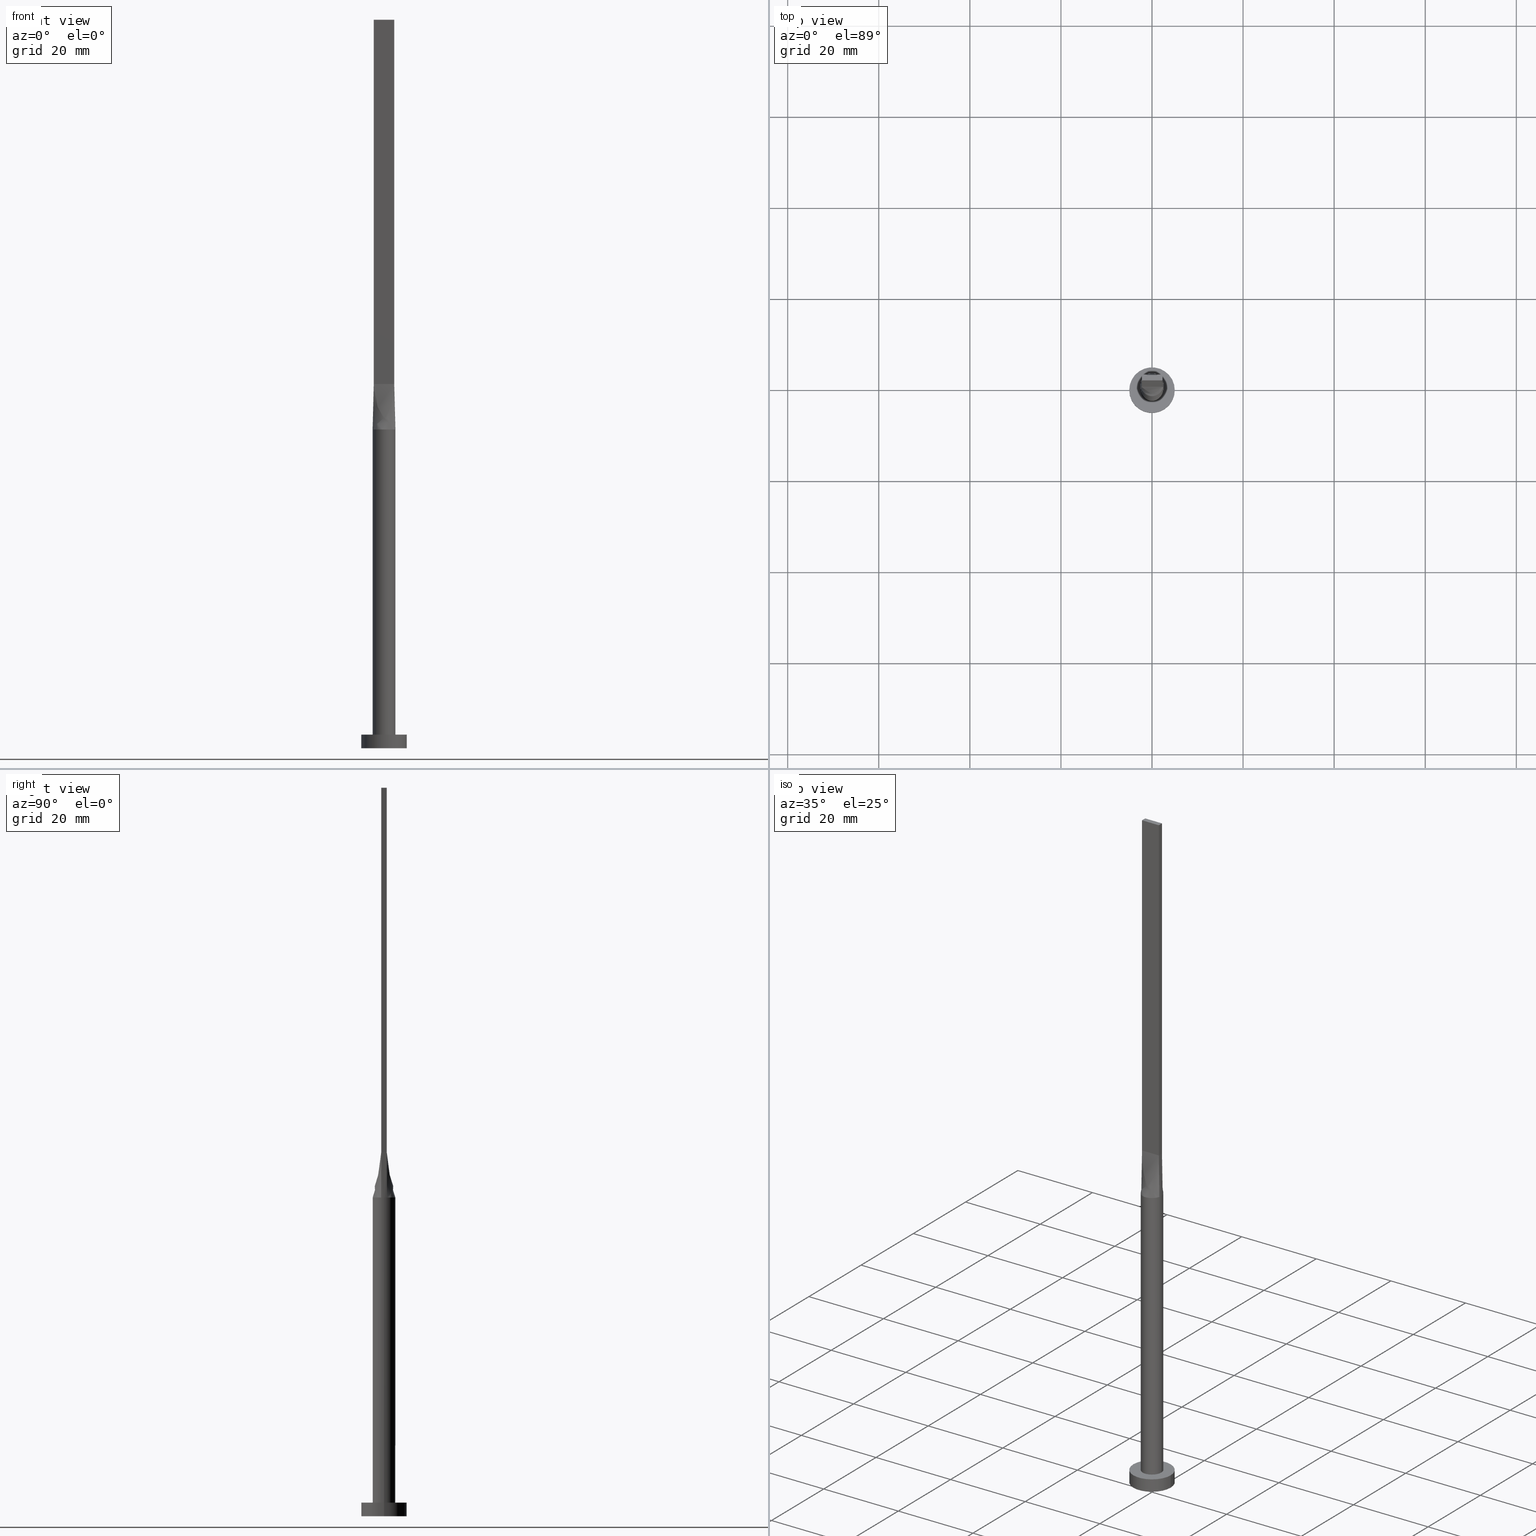
[diagram: canonical four-view strip — front | top / right | iso, engineering-drawing reading convention]
A machine part, canonical four-view strip (front | top / right | iso — engineering-drawing reading convention). The complete STEP part file that produces these views, byte-faithful:
ISO-10303-21;
HEADER;
FILE_DESCRIPTION (( 'STEP AP203' ),
    '1' );
FILE_NAME ('8a02.STEP',
    '2023-02-13T11:21:34',
    ( '' ),
    ( '' ),
    'SwSTEP 2.0',
    'SolidWorks 2019',
    '' );
FILE_SCHEMA (( 'CONFIG_CONTROL_DESIGN' ));
ENDSEC;

DATA;
#1 = ORIENTED_EDGE ( 'NONE', *, *, #532, .T. ) ;
#2 = EDGE_CURVE ( 'NONE', #413, #77, #72, .T. ) ;
#3 = CARTESIAN_POINT ( 'NONE',  ( -0.6394215159088052491, 2.436483607037785326, 70.00000000000000000 ) ) ;
#4 = ORIENTED_EDGE ( 'NONE', *, *, #564, .F. ) ;
#5 = LOCAL_TIME ( 12, 21, 34.00000000000000000, #226 ) ;
#6 = DATE_AND_TIME ( #533, #5 ) ;
#7 = CARTESIAN_POINT ( 'NONE',  ( 1.880930080310023289, 1.670304384679167642, 69.99999999999998579 ) ) ;
#8 = ORIENTED_EDGE ( 'NONE', *, *, #532, .F. ) ;
#9 = LINE ( 'NONE', #49, #316 ) ;
#10 = EDGE_LOOP ( 'NONE', ( #387, #399, #354, #520 ) ) ;
#11 = PRODUCT_RELATED_PRODUCT_CATEGORY ( 'detail', '', ( #45 ) ) ;
#12 = CARTESIAN_POINT ( 'NONE',  ( 2.283437435282019479, -1.045786430836911363, 70.00000000000001421 ) ) ;
#13 = CARTESIAN_POINT ( 'NONE',  ( 0.000000000000000000, 0.000000000000000000, 3.000000000000000000 ) ) ;
#14 = CIRCLE ( 'NONE', #63, 2.500000000000000000 ) ;
#15 = EDGE_CURVE ( 'NONE', #576, #58, #195, .T. ) ;
#16 = PLANE ( 'NONE',  #306 ) ;
#17 = DIRECTION ( 'NONE',  ( 1.000000000000000000, -7.228014483236697048E-17, 0.000000000000000000 ) ) ;
#18 = APPROVAL ( #221, 'NEUR�EN�' ) ;
#19 = LINE ( 'NONE', #169, #238 ) ;
#20 = CARTESIAN_POINT ( 'NONE',  ( 1.874999999999996003, 0.6000000000000001998, 80.00000000000000000 ) ) ;
#21 = CARTESIAN_POINT ( 'NONE',  ( -2.470912383581262084, -0.4366877467327804907, 70.00000000000000000 ) ) ;
#22 = CARTESIAN_POINT ( 'NONE',  ( 2.062499999999997335, 0.6000000000000001998, 80.00000000000000000 ) ) ;
#23 = AXIS2_PLACEMENT_3D ( 'NONE', #435, #570, #172 ) ;
#24 = CARTESIAN_POINT ( 'NONE',  ( 1.466504377161500727, -2.043814966248090226, 70.00000000000000000 ) ) ;
#25 = CARTESIAN_POINT ( 'NONE',  ( -2.250000000000000000, -0.5999999999999994227, 160.0000000000000000 ) ) ;
#26 = LINE ( 'NONE', #518, #54 ) ;
#27 = CARTESIAN_POINT ( 'NONE',  ( -0.3201159637850009010, 2.500000000000000444, 69.99999999999998579 ) ) ;
#28 = EDGE_CURVE ( 'NONE', #492, #93, #465, .T. ) ;
#29 = ORIENTED_EDGE ( 'NONE', *, *, #28, .F. ) ;
#30 = DIRECTION ( 'NONE',  ( -0.000000000000000000, -0.000000000000000000, -1.000000000000000000 ) ) ;
#31 = ORIENTED_EDGE ( 'NONE', *, *, #506, .T. ) ;
#32 = VECTOR ( 'NONE', #36, 1000.000000000000114 ) ;
#33 = APPROVAL_ROLE ( '' ) ;
#34 = CARTESIAN_POINT ( 'NONE',  ( -0.3750000000000103251, 0.6000000000000000888, 79.99999999999998579 ) ) ;
#35 = EDGE_CURVE ( 'NONE', #93, #501, #558, .T. ) ;
#36 = DIRECTION ( 'NONE',  ( -0.01655630387018623695, -0.004415014365382971366, -0.9998531874481929593 ) ) ;
#37 = CARTESIAN_POINT ( 'NONE',  ( 1.212939335911088934, 2.207734225347457002, 69.99999999999998579 ) ) ;
#38 = ORIENTED_EDGE ( 'NONE', *, *, #408, .F. ) ;
#39 = CALENDAR_DATE ( 2023, 13, 2 ) ;
#40 = CARTESIAN_POINT ( 'NONE',  ( -2.415587349003115669, 0.6441566264008307119, 70.00000000000000000 ) ) ;
#41 = PERSON_AND_ORGANIZATION_ROLE ( 'design_supplier' ) ;
#42 = LOCAL_TIME ( 12, 21, 34.00000000000000000, #366 ) ;
#43 = CARTESIAN_POINT ( 'NONE',  ( 2.250000000000000000, -0.5999999999999997558, 160.0000000000000000 ) ) ;
#44 = ORIENTED_EDGE ( 'NONE', *, *, #307, .T. ) ;
#45 = PRODUCT ( '8a02', '8a02', '', ( #479 ) ) ;
#46 = CARTESIAN_POINT ( 'NONE',  ( 0.6394215159088050271, 2.436483607037784882, 69.99999999999998579 ) ) ;
#47 = ORIENTED_EDGE ( 'NONE', *, *, #92, .F. ) ;
#48 = APPROVAL_STATUS ( 'not_yet_approved' ) ;
#49 = CARTESIAN_POINT ( 'NONE',  ( -2.249999999999999556, 0.6000000000000001998, 160.0000000000000000 ) ) ;
#50 = ORIENTED_EDGE ( 'NONE', *, *, #143, .F. ) ;
#51 = B_SPLINE_SURFACE_WITH_KNOTS ( 'NONE', 3, 1, ( 
 ( #537, #314 ),
 ( #455, #490 ),
 ( #273, #53 ),
 ( #183, #374 ),
 ( #21, #554 ),
 ( #246, #66 ) ),
 .UNSPECIFIED., .F., .F., .F.,
 ( 4, 2, 4 ),
 ( 2, 2 ),
 ( 0.000000000000000000, 0.5000000000000000000, 1.000000000000000000 ),
 ( 0.000000000000000000, 1.000000000000000000 ),
 .UNSPECIFIED. ) ;
#52 = DATE_AND_TIME ( #536, #186 ) ;
#53 = CARTESIAN_POINT ( 'NONE',  ( -2.249999999999999556, 0.1999999999999995115, 79.99999999999998579 ) ) ;
#54 = VECTOR ( 'NONE', #571, 1000.000000000000000 ) ;
#55 = ORIENTED_EDGE ( 'NONE', *, *, #466, .T. ) ;
#56 = EDGE_CURVE ( 'NONE', #501, #498, #107, .T. ) ;
#57 = DIRECTION ( 'NONE',  ( 0.000000000000000000, -1.000000000000000000, 0.000000000000000000 ) ) ;
#58 = VERTEX_POINT ( 'NONE', #206 ) ;
#59 = CARTESIAN_POINT ( 'NONE',  ( 0.7499999999999995559, -0.5999999999999996447, 79.99999999999998579 ) ) ;
#60 = CARTESIAN_POINT ( 'NONE',  ( -2.249999999999999556, 0.6000000000000001998, 160.0000000000000000 ) ) ;
#61 = CARTESIAN_POINT ( 'NONE',  ( -2.249999999999999556, 0.6000000000000001998, 80.00000000000000000 ) ) ;
#62 = CARTESIAN_POINT ( 'NONE',  ( -2.415775789045403688, 0.6442075170323000588, 70.00000000000000000 ) ) ;
#63 = AXIS2_PLACEMENT_3D ( 'NONE', #294, #517, #285 ) ;
#64 = CC_DESIGN_PERSON_AND_ORGANIZATION_ASSIGNMENT ( #73, #257, ( #45 ) ) ;
#65 = SECURITY_CLASSIFICATION ( '', '', #496 ) ;
#66 = CARTESIAN_POINT ( 'NONE',  ( -2.250000000000000000, -0.5999999999999995337, 80.00000000000000000 ) ) ;
#67 = CARTESIAN_POINT ( 'NONE',  ( 2.249999999999999556, 0.6000000000000001998, 80.00000000000000000 ) ) ;
#68 = CARTESIAN_POINT ( 'NONE',  ( 0.3201159637850000128, -2.500000000000000888, 70.00000000000000000 ) ) ;
#69 = CARTESIAN_POINT ( 'NONE',  ( -2.250000000000000000, -0.5999999999999994227, 160.0000000000000000 ) ) ;
#70 = CARTESIAN_POINT ( 'NONE',  ( -0.7500000000000004441, -0.5999999999999994227, 79.99999999999998579 ) ) ;
#71 = DIRECTION ( 'NONE',  ( 3.614007241618349264E-16, 1.000000000000000000, 0.000000000000000000 ) ) ;
#72 = CIRCLE ( 'NONE', #550, 5.000000000000000000 ) ;
#73 = PERSON_AND_ORGANIZATION ( #295, #406 ) ;
#74 = PLANE ( 'NONE',  #529 ) ;
#75 = LINE ( 'NONE', #390, #32 ) ;
#76 = DIRECTION ( 'NONE',  ( 0.000000000000000000, 0.000000000000000000, 1.000000000000000000 ) ) ;
#77 = VERTEX_POINT ( 'NONE', #516 ) ;
#78 = EDGE_CURVE ( 'NONE', #460, #220, #565, .T. ) ;
#79 = APPLICATION_PROTOCOL_DEFINITION ( 'international standard', 'config_control_design', 1994, #521 ) ;
#80 = DIRECTION ( 'NONE',  ( 0.01655630387018623695, -0.004415014365382950549, 0.9998531874481929593 ) ) ;
#81 = CC_DESIGN_PERSON_AND_ORGANIZATION_ASSIGNMENT ( #447, #41, ( #158 ) ) ;
#82 = DIRECTION ( 'NONE',  ( 0.000000000000000000, 0.000000000000000000, 1.000000000000000000 ) ) ;
#83 = CARTESIAN_POINT ( 'NONE',  ( -2.363720129086103849, 0.8386587010896275896, 70.00000000000001421 ) ) ;
#84 = ORIENTED_EDGE ( 'NONE', *, *, #495, .F. ) ;
#85 = DIRECTION ( 'NONE',  ( 1.000000000000000000, 0.000000000000000000, 0.000000000000000000 ) ) ;
#86 = DIRECTION ( 'NONE',  ( 0.000000000000000000, 0.000000000000000000, 1.000000000000000000 ) ) ;
#87 = VERTEX_POINT ( 'NONE', #338 ) ;
#88 = DIRECTION ( 'NONE',  ( -1.000000000000000000, 0.000000000000000000, 0.000000000000000000 ) ) ;
#89 = VECTOR ( 'NONE', #262, 1000.000000000000000 ) ;
#90 = LOCAL_TIME ( 12, 21, 34.00000000000000000, #542 ) ;
#91 = CARTESIAN_POINT ( 'NONE',  ( 2.249999999999999556, 0.2000000000000003719, 79.99999999999998579 ) ) ;
#92 = EDGE_CURVE ( 'NONE', #485, #501, #340, .T. ) ;
#93 = VERTEX_POINT ( 'NONE', #69 ) ;
#94 = CARTESIAN_POINT ( 'NONE',  ( -2.415775789045403688, 0.6442075170323000588, 70.00000000000000000 ) ) ;
#95 = ORIENTED_EDGE ( 'NONE', *, *, #232, .T. ) ;
#96 = PERSON_AND_ORGANIZATION ( #295, #406 ) ;
#97 = CARTESIAN_POINT ( 'NONE',  ( 2.499999999999999112, 0.2184061234416761477, 69.99999999999998579 ) ) ;
#98 = VERTEX_POINT ( 'NONE', #62 ) ;
#99 = CC_DESIGN_DATE_AND_TIME_ASSIGNMENT ( #499, #407, ( #65 ) ) ;
#100 = CARTESIAN_POINT ( 'NONE',  ( 0.3201159637850002349, 2.500000000000000888, 70.00000000000000000 ) ) ;
#101 = ORIENTED_EDGE ( 'NONE', *, *, #551, .T. ) ;
#102 = CARTESIAN_POINT ( 'NONE',  ( -0.9375000000000004441, -0.5999999999999994227, 79.99999999999998579 ) ) ;
#103 = ORIENTED_EDGE ( 'NONE', *, *, #78, .F. ) ;
#104 = CARTESIAN_POINT ( 'NONE',  ( -1.312500000000000222, -0.5999999999999994227, 79.99999999999998579 ) ) ;
#105 = CARTESIAN_POINT ( 'NONE',  ( -2.250000000000000000, -0.5999999999999994227, 80.00000000000000000 ) ) ;
#106 = DIRECTION ( 'NONE',  ( 7.228014483236697048E-17, 1.000000000000000000, -0.000000000000000000 ) ) ;
#107 = LINE ( 'NONE', #105, #434 ) ;
#108 = VECTOR ( 'NONE', #488, 1000.000000000000000 ) ;
#109 = CIRCLE ( 'NONE', #530, 2.500000000000000000 ) ;
#110 = CARTESIAN_POINT ( 'NONE',  ( -2.415587349003116113, -0.6441566264008301568, 70.00000000000000000 ) ) ;
#111 = DIRECTION ( 'NONE',  ( 0.000000000000000000, 0.000000000000000000, 1.000000000000000000 ) ) ;
#112 = CARTESIAN_POINT ( 'NONE',  ( 2.332793674501557390, 0.6220783132004152893, 75.00000000000001421 ) ) ;
#113 = DIRECTION ( 'NONE',  ( -3.614007241618349264E-16, -1.000000000000000000, 0.000000000000000000 ) ) ;
#114 = APPROVAL ( #48, 'NEUR�EN�' ) ;
#115 = CYLINDRICAL_SURFACE ( 'NONE', #482, 2.500000000000000000 ) ;
#116 = VECTOR ( 'NONE', #265, 1000.000000000000114 ) ;
#117 =( LENGTH_UNIT ( ) NAMED_UNIT ( * ) SI_UNIT ( .MILLI., .METRE. ) );
#118 = ADVANCED_FACE ( 'NONE', ( #463 ), #150, .F. ) ;
#119 = CARTESIAN_POINT ( 'NONE',  ( 0.1874999999999888145, 0.6000000000000000888, 79.99999999999998579 ) ) ;
#120 = EDGE_LOOP ( 'NONE', ( #346, #449, #38, #228 ) ) ;
#121 = CARTESIAN_POINT ( 'NONE',  ( 0.000000000000000000, 0.000000000000000000, 70.00000000000000000 ) ) ;
#122 = CC_DESIGN_DATE_AND_TIME_ASSIGNMENT ( #356, #580, ( #514 ) ) ;
#123 = CARTESIAN_POINT ( 'NONE',  ( -0.7500000000000088818, 0.6000000000000000888, 79.99999999999998579 ) ) ;
#124 = EDGE_LOOP ( 'NONE', ( #132, #1, #544, #31 ) ) ;
#125 = VECTOR ( 'NONE', #17, 1000.000000000000000 ) ;
#126 = CC_DESIGN_APPROVAL ( #114, ( #65 ) ) ;
#127 = CARTESIAN_POINT ( 'NONE',  ( 2.250000000000000000, -0.5999999999999997558, 160.0000000000000000 ) ) ;
#128 = CARTESIAN_POINT ( 'NONE',  ( -2.415759998437587708, -0.6442033382925431706, 70.00000000000000000 ) ) ;
#129 = ORIENTED_EDGE ( 'NONE', *, *, #323, .T. ) ;
#130 = APPROVAL_DATE_TIME ( #6, #114 ) ;
#131 = CARTESIAN_POINT ( 'NONE',  ( 2.249999999999999556, 0.6000000000000001998, 160.0000000000000000 ) ) ;
#132 = ORIENTED_EDGE ( 'NONE', *, *, #522, .T. ) ;
#133 = CARTESIAN_POINT ( 'NONE',  ( 2.250000000000000000, -0.5999999999999997558, 160.0000000000000000 ) ) ;
#134 = B_SPLINE_SURFACE_WITH_KNOTS ( 'NONE', 3, 1, ( 
 ( #110, #149 ),
 ( #159, #504 ),
 ( #330, #332 ),
 ( #472, #507 ),
 ( #243, #104 ),
 ( #202, #102 ),
 ( #286, #70 ),
 ( #204, #380 ),
 ( #249, #291 ),
 ( #68, #559 ),
 ( #509, #253 ),
 ( #426, #59 ),
 ( #24, #200 ),
 ( #556, #154 ),
 ( #515, #464 ),
 ( #12, #335 ),
 ( #251, #548 ),
 ( #470, #512 ) ),
 .UNSPECIFIED., .F., .F., .F.,
 ( 4, 2, 2, 2, 2, 2, 2, 2, 4 ),
 ( 2, 2 ),
 ( 0.000000000000000000, 0.1250000000000000000, 0.2500000000000000000, 0.3750000000000000000, 0.4999999999999999445, 0.6250000000000000000, 0.7500000000000000000, 0.8750000000000000000, 1.000000000000000000 ),
 ( 0.000000000000000000, 1.000000000000000000 ),
 .UNSPECIFIED. ) ;
#135 = ORIENTED_EDGE ( 'NONE', *, *, #139, .F. ) ;
#136 = PERSON_AND_ORGANIZATION_ROLE ( 'classification_officer' ) ;
#137 = AXIS2_PLACEMENT_3D ( 'NONE', #171, #487, #476 ) ;
#138 = DIRECTION ( 'NONE',  ( 1.000000000000000000, 0.000000000000000000, -0.000000000000000000 ) ) ;
#139 = EDGE_CURVE ( 'NONE', #276, #188, #14, .T. ) ;
#140 = EDGE_LOOP ( 'NONE', ( #184, #50, #164, #456 ) ) ;
#141 = CARTESIAN_POINT ( 'NONE',  ( 1.466504377161500949, 2.043814966248089782, 69.99999999999998579 ) ) ;
#142 = ORIENTED_EDGE ( 'NONE', *, *, #539, .T. ) ;
#143 = EDGE_CURVE ( 'NONE', #549, #498, #418, .T. ) ;
#144 = UNCERTAINTY_MEASURE_WITH_UNIT (LENGTH_MEASURE( 1.000000000000000082E-05 ), #117, 'distance_accuracy_value', 'NONE');
#145 = FACE_OUTER_BOUND ( 'NONE', #120, .T. ) ;
#146 = ORIENTED_EDGE ( 'NONE', *, *, #35, .F. ) ;
#147 = DIRECTION ( 'NONE',  ( -0.01655630387018623695, -0.004415014365382927998, 0.9998531874481929593 ) ) ;
#148 = VERTEX_POINT ( 'NONE', #428 ) ;
#149 = CARTESIAN_POINT ( 'NONE',  ( -2.250000000000000000, -0.5999999999999994227, 80.00000000000000000 ) ) ;
#150 = PLANE ( 'NONE',  #467 ) ;
#151 = EDGE_CURVE ( 'NONE', #93, #549, #373, .T. ) ;
#152 = CARTESIAN_POINT ( 'NONE',  ( -2.250000000000000000, -0.5999999999999994227, 160.0000000000000000 ) ) ;
#153 = DIRECTION ( 'NONE',  ( 1.000000000000000000, 0.000000000000000000, -0.000000000000000000 ) ) ;
#154 = CARTESIAN_POINT ( 'NONE',  ( 1.312499999999999778, -0.5999999999999997558, 79.99999999999998579 ) ) ;
#155 = CARTESIAN_POINT ( 'NONE',  ( 1.880930080310023289, 1.670304384679167642, 69.99999999999998579 ) ) ;
#156 = ADVANCED_FACE ( 'NONE', ( #553 ), #377, .T. ) ;
#157 = VECTOR ( 'NONE', #359, 1000.000000000000000 ) ;
#158 = PRODUCT_DEFINITION_FORMATION_WITH_SPECIFIED_SOURCE ( 'LIBOVOLN�', '', #45, .NOT_KNOWN. ) ;
#159 = CARTESIAN_POINT ( 'NONE',  ( -2.363720129086103405, -0.8386587010896268124, 70.00000000000001421 ) ) ;
#160 = DIRECTION ( 'NONE',  ( 1.000000000000000000, 0.000000000000000000, 0.000000000000000000 ) ) ;
#161 = ADVANCED_FACE ( 'NONE', ( #375 ), #252, .T. ) ;
#162 = APPLICATION_CONTEXT ( 'configuration controlled 3d designs of mechanical parts and assemblies' ) ;
#163 = DIRECTION ( 'NONE',  ( -0.000000000000000000, -0.000000000000000000, -1.000000000000000000 ) ) ;
#164 = ORIENTED_EDGE ( 'NONE', *, *, #151, .F. ) ;
#165 = DIRECTION ( 'NONE',  ( 0.000000000000000000, 0.000000000000000000, 1.000000000000000000 ) ) ;
#166 = FACE_OUTER_BOUND ( 'NONE', #182, .T. ) ;
#167 = AXIS2_PLACEMENT_3D ( 'NONE', #331, #561, #201 ) ;
#168 = APPROVAL ( #429, 'NEUR�EN�' ) ;
#169 = CARTESIAN_POINT ( 'NONE',  ( 2.249999999999999556, 0.6000000000000001998, 160.0000000000000000 ) ) ;
#170 = CARTESIAN_POINT ( 'NONE',  ( 5.000000000000000000, 6.123233995736766282E-16, 3.000000000000000000 ) ) ;
#171 = CARTESIAN_POINT ( 'NONE',  ( 0.000000000000000000, 0.000000000000000000, 70.00000000000000000 ) ) ;
#172 = DIRECTION ( 'NONE',  ( 1.000000000000000000, 0.000000000000000000, 0.000000000000000000 ) ) ;
#173 = CYLINDRICAL_SURFACE ( 'NONE', #207, 2.500000000000000000 ) ;
#174 = CARTESIAN_POINT ( 'NONE',  ( -1.875000000000002442, 0.6000000000000000888, 79.99999999999998579 ) ) ;
#175 = VECTOR ( 'NONE', #88, 1000.000000000000000 ) ;
#176 = AXIS2_PLACEMENT_3D ( 'NONE', #566, #213, #303 ) ;
#177 = CARTESIAN_POINT ( 'NONE',  ( -2.062500000000000888, 0.6000000000000000888, 79.99999999999998579 ) ) ;
#178 = ORIENTED_EDGE ( 'NONE', *, *, #506, .F. ) ;
#179 = ADVANCED_FACE ( 'NONE', ( #334 ), #235, .T. ) ;
#180 = PERSON_AND_ORGANIZATION_ROLE ( 'creator' ) ;
#181 = CARTESIAN_POINT ( 'NONE',  ( 2.415587349003115669, 0.6441566264008304898, 70.00000000000000000 ) ) ;
#182 = EDGE_LOOP ( 'NONE', ( #358, #535, #142, #478 ) ) ;
#183 = CARTESIAN_POINT ( 'NONE',  ( -2.499999999999999112, -0.2184061234416761199, 69.99999999999998579 ) ) ;
#184 = ORIENTED_EDGE ( 'NONE', *, *, #56, .T. ) ;
#185 = CC_DESIGN_PERSON_AND_ORGANIZATION_ASSIGNMENT ( #320, #545, ( #158 ) ) ;
#186 = LOCAL_TIME ( 12, 21, 34.00000000000000000, #388 ) ;
#187 = CARTESIAN_POINT ( 'NONE',  ( 2.249999999999999556, 0.4000000000000002998, 79.99999999999998579 ) ) ;
#188 = VERTEX_POINT ( 'NONE', #128 ) ;
#189 = CARTESIAN_POINT ( 'NONE',  ( 0.000000000000000000, 0.000000000000000000, 0.000000000000000000 ) ) ;
#190 = ORIENTED_EDGE ( 'NONE', *, *, #462, .T. ) ;
#191 = ADVANCED_BREP_SHAPE_REPRESENTATION ( '8a02', ( #194, #176 ), #344 ) ;
#192 = CARTESIAN_POINT ( 'NONE',  ( -1.466504377161500727, 2.043814966248090226, 70.00000000000000000 ) ) ;
#193 = ORIENTED_EDGE ( 'NONE', *, *, #441, .T. ) ;
#194 = MANIFOLD_SOLID_BREP ( 'P�idat vysunut�m5', #215 ) ;
#195 = CIRCLE ( 'NONE', #361, 5.000000000000000000 ) ;
#196 = CARTESIAN_POINT ( 'NONE',  ( 2.249999999999999556, 0.6000000000000001998, 80.00000000000000000 ) ) ;
#197 = CC_DESIGN_APPROVAL ( #168, ( #514 ) ) ;
#198 = DIRECTION ( 'NONE',  ( 0.000000000000000000, 0.000000000000000000, 1.000000000000000000 ) ) ;
#199 = EDGE_CURVE ( 'NONE', #527, #485, #222, .T. ) ;
#200 = CARTESIAN_POINT ( 'NONE',  ( 0.9374999999999997780, -0.5999999999999996447, 79.99999999999998579 ) ) ;
#201 = DIRECTION ( 'NONE',  ( -1.000000000000000000, 0.000000000000000000, 0.000000000000000000 ) ) ;
#202 = CARTESIAN_POINT ( 'NONE',  ( -1.466504377161501171, -2.043814966248090226, 69.99999999999998579 ) ) ;
#203 = CARTESIAN_POINT ( 'NONE',  ( 1.499999999999993561, 0.6000000000000000888, 79.99999999999998579 ) ) ;
#204 = CARTESIAN_POINT ( 'NONE',  ( -0.6394215159088060263, -2.436483607037785326, 70.00000000000001421 ) ) ;
#205 = CC_DESIGN_PERSON_AND_ORGANIZATION_ASSIGNMENT ( #363, #180, ( #514 ) ) ;
#206 = CARTESIAN_POINT ( 'NONE',  ( -5.000000000000000000, 0.000000000000000000, 3.000000000000000000 ) ) ;
#207 = AXIS2_PLACEMENT_3D ( 'NONE', #438, #339, #569 ) ;
#208 =( NAMED_UNIT ( * ) PLANE_ANGLE_UNIT ( ) SI_UNIT ( $, .RADIAN. ) );
#209 = CARTESIAN_POINT ( 'NONE',  ( -2.249999999999999556, 0.6000000000000001998, 80.00000000000000000 ) ) ;
#210 = CARTESIAN_POINT ( 'NONE',  ( 5.000000000000000000, 6.123233995736766282E-16, 3.000000000000000000 ) ) ;
#211 = CARTESIAN_POINT ( 'NONE',  ( -1.466504377161500727, 2.043814966248090226, 70.00000000000000000 ) ) ;
#212 = EDGE_LOOP ( 'NONE', ( #578, #365 ) ) ;
#213 = DIRECTION ( 'NONE',  ( 0.000000000000000000, 0.000000000000000000, 1.000000000000000000 ) ) ;
#214 = DIRECTION ( 'NONE',  ( -1.000000000000000000, 0.000000000000000000, 0.000000000000000000 ) ) ;
#215 = CLOSED_SHELL ( 'NONE', ( #216, #156, #261, #223, #349, #503, #453, #427, #432, #179, #327, #118, #486, #333, #161 ) ) ;
#216 = ADVANCED_FACE ( 'NONE', ( #523 ), #115, .T. ) ;
#217 =( NAMED_UNIT ( * ) SI_UNIT ( $, .STERADIAN. ) SOLID_ANGLE_UNIT ( ) );
#218 = DIRECTION ( 'NONE',  ( 1.000000000000000000, 3.552713678800500929E-15, 0.000000000000000000 ) ) ;
#219 = CARTESIAN_POINT ( 'NONE',  ( -1.212939335911090044, 2.207734225347456114, 70.00000000000001421 ) ) ;
#220 = VERTEX_POINT ( 'NONE', #477 ) ;
#221 = APPROVAL_STATUS ( 'not_yet_approved' ) ;
#222 = LINE ( 'NONE', #266, #385 ) ;
#223 = ADVANCED_FACE ( 'NONE', ( #296, #310 ), #74, .T. ) ;
#224 = VECTOR ( 'NONE', #423, 1000.000000000000000 ) ;
#225 = AXIS2_PLACEMENT_3D ( 'NONE', #350, #562, #85 ) ;
#226 = COORDINATED_UNIVERSAL_TIME_OFFSET ( 1, 0, .AHEAD. ) ;
#227 = CARTESIAN_POINT ( 'NONE',  ( 2.415587349003115669, -0.6441566264008309339, 70.00000000000000000 ) ) ;
#228 = ORIENTED_EDGE ( 'NONE', *, *, #495, .T. ) ;
#229 = EDGE_CURVE ( 'NONE', #452, #148, #272, .T. ) ;
#230 = CARTESIAN_POINT ( 'NONE',  ( 2.499999999999999556, -0.2184061234416767305, 69.99999999999998579 ) ) ;
#231 = ORIENTED_EDGE ( 'NONE', *, *, #15, .T. ) ;
#232 = EDGE_CURVE ( 'NONE', #148, #220, #383, .T. ) ;
#233 = SHAPE_DEFINITION_REPRESENTATION ( #411, #191 ) ;
#234 = DIRECTION ( 'NONE',  ( 0.000000000000000000, -0.000000000000000000, -1.000000000000000000 ) ) ;
#235 = B_SPLINE_SURFACE_WITH_KNOTS ( 'NONE', 3, 1, ( 
 ( #290, #67 ),
 ( #250, #22 ),
 ( #421, #20 ),
 ( #381, #203 ),
 ( #155, #513 ),
 ( #391, #395 ),
 ( #37, #526 ),
 ( #431, #269 ),
 ( #430, #119 ),
 ( #27, #563 ),
 ( #575, #34 ),
 ( #219, #123 ),
 ( #211, #475 ),
 ( #304, #483 ),
 ( #572, #531 ),
 ( #343, #174 ),
 ( #83, #177 ),
 ( #40, #353 ) ),
 .UNSPECIFIED., .F., .F., .F.,
 ( 4, 2, 2, 2, 2, 2, 2, 2, 4 ),
 ( 2, 2 ),
 ( 0.000000000000000000, 0.1249999999999999445, 0.2499999999999998890, 0.3749999999999998335, 0.4999999999999997780, 0.6249999999999997780, 0.7499999999999997780, 0.8749999999999997780, 1.000000000000000000 ),
 ( 0.000000000000000000, 1.000000000000000000 ),
 .UNSPECIFIED. ) ;
#236 = ORIENTED_EDGE ( 'NONE', *, *, #139, .T. ) ;
#237 = APPROVAL_DATE_TIME ( #394, #18 ) ;
#238 = VECTOR ( 'NONE', #163, 1000.000000000000000 ) ;
#239 = PLANE ( 'NONE',  #264 ) ;
#240 = ORIENTED_EDGE ( 'NONE', *, *, #143, .T. ) ;
#241 = CARTESIAN_POINT ( 'NONE',  ( -0.3201159637850009010, 2.500000000000000444, 69.99999999999998579 ) ) ;
#242 = EDGE_LOOP ( 'NONE', ( #319, #95, #44, #263, #4, #410 ) ) ;
#243 = CARTESIAN_POINT ( 'NONE',  ( -1.880930080310024621, -1.670304384679167420, 70.00000000000000000 ) ) ;
#244 = DIRECTION ( 'NONE',  ( 1.000000000000000000, -3.614007241618349264E-16, 0.000000000000000000 ) ) ;
#245 = VECTOR ( 'NONE', #147, 1000.000000000000114 ) ;
#246 = CARTESIAN_POINT ( 'NONE',  ( -2.415587349003116113, -0.6441566264008302678, 70.00000000000000000 ) ) ;
#247 = AXIS2_PLACEMENT_3D ( 'NONE', #369, #552, #337 ) ;
#248 = CARTESIAN_POINT ( 'NONE',  ( -2.250000000000000000, -0.5999999999999994227, 160.0000000000000000 ) ) ;
#249 = CARTESIAN_POINT ( 'NONE',  ( -0.3201159637850009565, -2.499999999999999112, 69.99999999999998579 ) ) ;
#250 = CARTESIAN_POINT ( 'NONE',  ( 2.363720129086103405, 0.8386587010896275896, 69.99999999999998579 ) ) ;
#251 = CARTESIAN_POINT ( 'NONE',  ( 2.363720129086102961, -0.8386587010896274785, 70.00000000000001421 ) ) ;
#252 = PLANE ( 'NONE',  #457 ) ;
#253 = CARTESIAN_POINT ( 'NONE',  ( 0.3749999999999995559, -0.5999999999999996447, 79.99999999999998579 ) ) ;
#254 = VECTOR ( 'NONE', #255, 1000.000000000000000 ) ;
#255 = DIRECTION ( 'NONE',  ( -0.000000000000000000, -0.000000000000000000, -1.000000000000000000 ) ) ;
#256 = CIRCLE ( 'NONE', #247, 5.000000000000000000 ) ;
#257 = PERSON_AND_ORGANIZATION_ROLE ( 'design_owner' ) ;
#258 = DIRECTION ( 'NONE',  ( 1.000000000000000000, 0.000000000000000000, -0.000000000000000000 ) ) ;
#259 = DIRECTION ( 'NONE',  ( 1.000000000000000000, 0.000000000000000000, 0.000000000000000000 ) ) ;
#260 = CARTESIAN_POINT ( 'NONE',  ( 0.000000000000000000, 0.000000000000000000, 3.000000000000000000 ) ) ;
#261 = ADVANCED_FACE ( 'NONE', ( #166 ), #300, .T. ) ;
#262 = DIRECTION ( 'NONE',  ( -0.000000000000000000, -0.000000000000000000, -1.000000000000000000 ) ) ;
#263 = ORIENTED_EDGE ( 'NONE', *, *, #462, .F. ) ;
#264 = AXIS2_PLACEMENT_3D ( 'NONE', #189, #500, #138 ) ;
#265 = DIRECTION ( 'NONE',  ( -0.01655630387018619185, 0.004415014365382960090, 0.9998531874481929593 ) ) ;
#266 = CARTESIAN_POINT ( 'NONE',  ( -2.249999999999999556, 0.6000000000000001998, 80.00000000000000000 ) ) ;
#267 = ORIENTED_EDGE ( 'NONE', *, *, #445, .T. ) ;
#268 = CARTESIAN_POINT ( 'NONE',  ( 0.000000000000000000, 0.000000000000000000, 0.000000000000000000 ) ) ;
#269 = CARTESIAN_POINT ( 'NONE',  ( 0.3749999999999892308, 0.6000000000000000888, 79.99999999999998579 ) ) ;
#270 = CARTESIAN_POINT ( 'NONE',  ( -5.000000000000000000, 0.000000000000000000, 0.000000000000000000 ) ) ;
#271 = ORIENTED_EDGE ( 'NONE', *, *, #307, .F. ) ;
#272 = CIRCLE ( 'NONE', #405, 2.500000000000000000 ) ;
#273 = CARTESIAN_POINT ( 'NONE',  ( -2.499999999999999556, 0.2184061234416766750, 69.99999999999998579 ) ) ;
#274 = VERTEX_POINT ( 'NONE', #386 ) ;
#275 = DIRECTION ( 'NONE',  ( -1.000000000000000000, -3.614007241618348278E-16, 0.000000000000000000 ) ) ;
#276 = VERTEX_POINT ( 'NONE', #389 ) ;
#277 = COORDINATED_UNIVERSAL_TIME_OFFSET ( 1, 0, .AHEAD. ) ;
#278 = PLANE ( 'NONE',  #491 ) ;
#279 = ORIENTED_EDGE ( 'NONE', *, *, #466, .F. ) ;
#280 = CIRCLE ( 'NONE', #23, 2.500000000000000000 ) ;
#281 = CARTESIAN_POINT ( 'NONE',  ( -1.212939335911090044, 2.207734225347456114, 70.00000000000001421 ) ) ;
#282 = EDGE_LOOP ( 'NONE', ( #396, #101, #193, #279, #8 ) ) ;
#283 = EDGE_CURVE ( 'NONE', #576, #77, #567, .T. ) ;
#284 = CARTESIAN_POINT ( 'NONE',  ( -2.500000000000000000, 0.000000000000000000, 3.000000000000000000 ) ) ;
#285 = DIRECTION ( 'NONE',  ( 1.000000000000000000, 0.000000000000000000, 0.000000000000000000 ) ) ;
#286 = CARTESIAN_POINT ( 'NONE',  ( -1.212939335911091154, -2.207734225347456558, 70.00000000000001421 ) ) ;
#287 = CARTESIAN_POINT ( 'NONE',  ( 0.000000000000000000, 0.000000000000000000, 0.000000000000000000 ) ) ;
#288 = DIRECTION ( 'NONE',  ( -1.000000000000000000, 7.228014483236697048E-17, 0.000000000000000000 ) ) ;
#289 = AXIS2_PLACEMENT_3D ( 'NONE', #268, #165, #298 ) ;
#290 = CARTESIAN_POINT ( 'NONE',  ( 2.415587349003115669, 0.6441566264008308229, 70.00000000000000000 ) ) ;
#291 = CARTESIAN_POINT ( 'NONE',  ( -0.1875000000000003886, -0.5999999999999995337, 80.00000000000000000 ) ) ;
#292 = CARTESIAN_POINT ( 'NONE',  ( 0.000000000000000000, 0.000000000000000000, 160.0000000000000000 ) ) ;
#293 = LINE ( 'NONE', #112, #245 ) ;
#294 = CARTESIAN_POINT ( 'NONE',  ( 0.000000000000000000, 0.000000000000000000, 70.00000000000000000 ) ) ;
#295 = PERSON ( 'NEUR�EN�', 'NEUR�EN�', 'NEUR�EN�', ('NEUR�EN�'), ('NEUR�EN�'), ('NEUR�EN�') ) ;
#296 = FACE_BOUND ( 'NONE', #301, .T. ) ;
#297 = CC_DESIGN_SECURITY_CLASSIFICATION ( #65, ( #158 ) ) ;
#298 = DIRECTION ( 'NONE',  ( 1.000000000000000000, 0.000000000000000000, 0.000000000000000000 ) ) ;
#299 = EDGE_CURVE ( 'NONE', #98, #485, #345, .T. ) ;
#300 = CYLINDRICAL_SURFACE ( 'NONE', #342, 5.000000000000000000 ) ;
#301 = EDGE_LOOP ( 'NONE', ( #103, #271 ) ) ;
#302 = CARTESIAN_POINT ( 'NONE',  ( -2.332793674501557390, 0.6220783132004154004, 75.00000000000001421 ) ) ;
#303 = DIRECTION ( 'NONE',  ( 1.000000000000000000, 0.000000000000000000, 0.000000000000000000 ) ) ;
#304 = CARTESIAN_POINT ( 'NONE',  ( -1.880930080310023733, 1.670304384679167420, 69.99999999999998579 ) ) ;
#305 = VECTOR ( 'NONE', #473, 1000.000000000000000 ) ;
#306 = AXIS2_PLACEMENT_3D ( 'NONE', #152, #106, #288 ) ;
#307 = EDGE_CURVE ( 'NONE', #220, #460, #280, .T. ) ;
#308 = VECTOR ( 'NONE', #372, 1000.000000000000000 ) ;
#309 = CARTESIAN_POINT ( 'NONE',  ( -2.250000000000000000, -0.5999999999999994227, 80.00000000000000000 ) ) ;
#310 = FACE_OUTER_BOUND ( 'NONE', #547, .T. ) ;
#311 = PERSON_AND_ORGANIZATION ( #295, #406 ) ;
#312 = LINE ( 'NONE', #131, #175 ) ;
#313 = ORIENTED_EDGE ( 'NONE', *, *, #419, .F. ) ;
#314 = CARTESIAN_POINT ( 'NONE',  ( -2.249999999999999556, 0.6000000000000001998, 80.00000000000000000 ) ) ;
#315 = ORIENTED_EDGE ( 'NONE', *, *, #151, .T. ) ;
#316 = VECTOR ( 'NONE', #459, 1000.000000000000000 ) ;
#317 = CC_DESIGN_APPROVAL ( #18, ( #158 ) ) ;
#318 = FACE_OUTER_BOUND ( 'NONE', #212, .T. ) ;
#319 = ORIENTED_EDGE ( 'NONE', *, *, #551, .F. ) ;
#320 = PERSON_AND_ORGANIZATION ( #295, #406 ) ;
#321 = CARTESIAN_POINT ( 'NONE',  ( -2.283437435282019923, 1.045786430836911141, 70.00000000000001421 ) ) ;
#322 = EDGE_LOOP ( 'NONE', ( #325, #368, #315, #329 ) ) ;
#323 = EDGE_CURVE ( 'NONE', #492, #485, #9, .T. ) ;
#324 = DIRECTION ( 'NONE',  ( 3.614007241618348278E-16, -1.000000000000000000, 0.000000000000000000 ) ) ;
#325 = ORIENTED_EDGE ( 'NONE', *, *, #408, .T. ) ;
#326 = DESIGN_CONTEXT ( 'detailed design', #521, 'design' ) ;
#327 = ADVANCED_FACE ( 'NONE', ( #145 ), #448, .F. ) ;
#328 = CARTESIAN_POINT ( 'NONE',  ( 2.415783834663384866, -0.6442097370852554183, 70.00000000000000000 ) ) ;
#329 = ORIENTED_EDGE ( 'NONE', *, *, #419, .T. ) ;
#330 = CARTESIAN_POINT ( 'NONE',  ( -2.283437435282020811, -1.045786430836910474, 70.00000000000000000 ) ) ;
#331 = CARTESIAN_POINT ( 'NONE',  ( 0.000000000000000000, 0.000000000000000000, 3.000000000000000000 ) ) ;
#332 = CARTESIAN_POINT ( 'NONE',  ( -1.874999999999999778, -0.5999999999999994227, 79.99999999999998579 ) ) ;
#333 = ADVANCED_FACE ( 'NONE', ( #493 ), #278, .F. ) ;
#334 = FACE_OUTER_BOUND ( 'NONE', #404, .T. ) ;
#335 = CARTESIAN_POINT ( 'NONE',  ( 1.875000000000000000, -0.5999999999999997558, 79.99999999999998579 ) ) ;
#336 = DIRECTION ( 'NONE',  ( 1.000000000000000000, 0.000000000000000000, 0.000000000000000000 ) ) ;
#337 = DIRECTION ( 'NONE',  ( 1.000000000000000000, 0.000000000000000000, 0.000000000000000000 ) ) ;
#338 = CARTESIAN_POINT ( 'NONE',  ( 2.249999999999999556, 0.6000000000000001998, 160.0000000000000000 ) ) ;
#339 = DIRECTION ( 'NONE',  ( -0.000000000000000000, -0.000000000000000000, -1.000000000000000000 ) ) ;
#340 = LINE ( 'NONE', #209, #378 ) ;
#341 = CARTESIAN_POINT ( 'NONE',  ( 2.250000000000000000, -0.5999999999999997558, 80.00000000000000000 ) ) ;
#342 = AXIS2_PLACEMENT_3D ( 'NONE', #260, #30, #214 ) ;
#343 = CARTESIAN_POINT ( 'NONE',  ( -2.283437435282019923, 1.045786430836911141, 70.00000000000001421 ) ) ;
#344 =( GEOMETRIC_REPRESENTATION_CONTEXT ( 3 ) GLOBAL_UNCERTAINTY_ASSIGNED_CONTEXT ( ( #144 ) ) GLOBAL_UNIT_ASSIGNED_CONTEXT ( ( #117, #208, #217 ) ) REPRESENTATION_CONTEXT ( 'NONE', 'WORKASPACE' ) );
#345 = LINE ( 'NONE', #302, #511 ) ;
#346 = ORIENTED_EDGE ( 'NONE', *, *, #199, .T. ) ;
#347 = LINE ( 'NONE', #525, #116 ) ;
#348 = DIRECTION ( 'NONE',  ( -1.000000000000000000, 0.000000000000000000, 0.000000000000000000 ) ) ;
#349 = ADVANCED_FACE ( 'NONE', ( #318 ), #239, .F. ) ;
#350 = CARTESIAN_POINT ( 'NONE',  ( 0.000000000000000000, 0.000000000000000000, 70.00000000000000000 ) ) ;
#351 = DIRECTION ( 'NONE',  ( -1.000000000000000000, -0.000000000000000000, -0.000000000000000000 ) ) ;
#352 = APPROVAL_ROLE ( '' ) ;
#353 = CARTESIAN_POINT ( 'NONE',  ( -2.249999999999999556, 0.6000000000000001998, 80.00000000000000000 ) ) ;
#354 = ORIENTED_EDGE ( 'NONE', *, *, #579, .T. ) ;
#355 = EDGE_CURVE ( 'NONE', #274, #98, #424, .T. ) ;
#356 = DATE_AND_TIME ( #39, #371 ) ;
#357 = CARTESIAN_POINT ( 'NONE',  ( 2.249999999999999556, 0.6000000000000001998, 80.00000000000000000 ) ) ;
#358 = ORIENTED_EDGE ( 'NONE', *, *, #283, .F. ) ;
#359 = DIRECTION ( 'NONE',  ( -3.614007241618348278E-16, 1.000000000000000000, 0.000000000000000000 ) ) ;
#360 = EDGE_LOOP ( 'NONE', ( #55, #84, #313, #240 ) ) ;
#361 = AXIS2_PLACEMENT_3D ( 'NONE', #13, #198, #160 ) ;
#362 = APPROVAL_PERSON_ORGANIZATION ( #433, #168, #33 ) ;
#363 = PERSON_AND_ORGANIZATION ( #295, #406 ) ;
#364 = FACE_OUTER_BOUND ( 'NONE', #568, .T. ) ;
#365 = ORIENTED_EDGE ( 'NONE', *, *, #579, .F. ) ;
#366 = COORDINATED_UNIVERSAL_TIME_OFFSET ( 1, 0, .AHEAD. ) ;
#367 = CARTESIAN_POINT ( 'NONE',  ( 1.212939335911088934, 2.207734225347457002, 69.99999999999998579 ) ) ;
#368 = ORIENTED_EDGE ( 'NONE', *, *, #28, .T. ) ;
#369 = CARTESIAN_POINT ( 'NONE',  ( 0.000000000000000000, 0.000000000000000000, 3.000000000000000000 ) ) ;
#370 = ORIENTED_EDGE ( 'NONE', *, *, #232, .F. ) ;
#371 = LOCAL_TIME ( 12, 21, 34.00000000000000000, #277 ) ;
#372 = DIRECTION ( 'NONE',  ( -3.614007241618348278E-16, 1.000000000000000000, -0.000000000000000000 ) ) ;
#373 = LINE ( 'NONE', #25, #125 ) ;
#374 = CARTESIAN_POINT ( 'NONE',  ( -2.249999999999999556, -0.2000000000000003719, 79.99999999999998579 ) ) ;
#375 = FACE_OUTER_BOUND ( 'NONE', #322, .T. ) ;
#376 = FACE_OUTER_BOUND ( 'NONE', #124, .T. ) ;
#377 = CYLINDRICAL_SURFACE ( 'NONE', #167, 5.000000000000000000 ) ;
#378 = VECTOR ( 'NONE', #113, 1000.000000000000000 ) ;
#379 = CIRCLE ( 'NONE', #225, 2.500000000000000000 ) ;
#380 = CARTESIAN_POINT ( 'NONE',  ( -0.3750000000000003886, -0.5999999999999994227, 79.99999999999998579 ) ) ;
#381 = CARTESIAN_POINT ( 'NONE',  ( 2.042400361660745567, 1.461628045180436430, 69.99999999999998579 ) ) ;
#382 = DIRECTION ( 'NONE',  ( 0.000000000000000000, 0.000000000000000000, 1.000000000000000000 ) ) ;
#383 = LINE ( 'NONE', #439, #108 ) ;
#384 = CARTESIAN_POINT ( 'NONE',  ( 0.000000000000000000, 0.000000000000000000, 70.00000000000000000 ) ) ;
#385 = VECTOR ( 'NONE', #351, 1000.000000000000000 ) ;
#386 = CARTESIAN_POINT ( 'NONE',  ( 2.415751997725693823, 0.6442011318043520118, 70.00000000000000000 ) ) ;
#387 = ORIENTED_EDGE ( 'NONE', *, *, #15, .F. ) ;
#388 = COORDINATED_UNIVERSAL_TIME_OFFSET ( 1, 0, .AHEAD. ) ;
#389 = CARTESIAN_POINT ( 'NONE',  ( -2.499999999999999556, -1.638601646481158325E-16, 70.00000000000000000 ) ) ;
#390 = CARTESIAN_POINT ( 'NONE',  ( -2.332793674501557835, -0.6220783132004148452, 75.00000000000001421 ) ) ;
#391 = CARTESIAN_POINT ( 'NONE',  ( 1.466504377161500949, 2.043814966248089782, 69.99999999999998579 ) ) ;
#392 = ORIENTED_EDGE ( 'NONE', *, *, #441, .F. ) ;
#393 = B_SPLINE_SURFACE_WITH_KNOTS ( 'NONE', 3, 1, ( 
 ( #227, #581 ),
 ( #497, #398 ),
 ( #230, #451 ),
 ( #97, #91 ),
 ( #577, #187 ),
 ( #181, #357 ) ),
 .UNSPECIFIED., .F., .F., .F.,
 ( 4, 2, 4 ),
 ( 2, 2 ),
 ( 0.000000000000000000, 0.5000000000000000000, 1.000000000000000000 ),
 ( 0.000000000000000000, 1.000000000000000000 ),
 .UNSPECIFIED. ) ;
#394 = DATE_AND_TIME ( #443, #42 ) ;
#395 = CARTESIAN_POINT ( 'NONE',  ( 0.9374999999999907851, 0.6000000000000000888, 79.99999999999998579 ) ) ;
#396 = ORIENTED_EDGE ( 'NONE', *, *, #229, .T. ) ;
#397 = PERSON_AND_ORGANIZATION ( #295, #406 ) ;
#398 = CARTESIAN_POINT ( 'NONE',  ( 2.250000000000000000, -0.3999999999999996336, 79.99999999999998579 ) ) ;
#399 = ORIENTED_EDGE ( 'NONE', *, *, #283, .T. ) ;
#400 = APPROVAL_DATE_TIME ( #52, #168 ) ;
#401 = CARTESIAN_POINT ( 'NONE',  ( 2.363720129086103405, 0.8386587010896275896, 69.99999999999998579 ) ) ;
#402 = ORIENTED_EDGE ( 'NONE', *, *, #229, .F. ) ;
#403 = CARTESIAN_POINT ( 'NONE',  ( 2.283437435282019923, 1.045786430836911585, 70.00000000000000000 ) ) ;
#404 = EDGE_LOOP ( 'NONE', ( #508, #573, #524, #392 ) ) ;
#405 = AXIS2_PLACEMENT_3D ( 'NONE', #121, #76, #218 ) ;
#406 = ORGANIZATION ( 'NEUR�EN�', 'NEUR�EN�', '' ) ;
#407 = DATE_TIME_ROLE ( 'classification_date' ) ;
#408 = EDGE_CURVE ( 'NONE', #87, #492, #312, .T. ) ;
#409 = CARTESIAN_POINT ( 'NONE',  ( 2.415751997725693823, 0.6442011318043520118, 70.00000000000000000 ) ) ;
#410 = ORIENTED_EDGE ( 'NONE', *, *, #355, .F. ) ;
#411 = PRODUCT_DEFINITION_SHAPE ( 'NONE', 'NONE',  #514 ) ;
#412 = CARTESIAN_POINT ( 'NONE',  ( -2.042400361660746899, 1.461628045180436430, 70.00000000000000000 ) ) ;
#413 = VERTEX_POINT ( 'NONE', #270 ) ;
#414 = LINE ( 'NONE', #196, #308 ) ;
#415 = CARTESIAN_POINT ( 'NONE',  ( 2.250000000000000000, -0.5999999999999997558, 160.0000000000000000 ) ) ;
#416 = AXIS2_PLACEMENT_3D ( 'NONE', #546, #57, #234 ) ;
#417 = FACE_OUTER_BOUND ( 'NONE', #140, .T. ) ;
#418 = LINE ( 'NONE', #415, #254 ) ;
#419 = EDGE_CURVE ( 'NONE', #549, #87, #444, .T. ) ;
#420 = LINE ( 'NONE', #422, #458 ) ;
#421 = CARTESIAN_POINT ( 'NONE',  ( 2.283437435282019923, 1.045786430836911585, 70.00000000000000000 ) ) ;
#422 = CARTESIAN_POINT ( 'NONE',  ( -2.500000000000000000, 0.000000000000000000, 70.00000000000000000 ) ) ;
#423 = DIRECTION ( 'NONE',  ( -3.614007241618349264E-16, -1.000000000000000000, 0.000000000000000000 ) ) ;
#424 = B_SPLINE_CURVE_WITH_KNOTS ( 'NONE', 3,
 ( #409, #401, #403, #489, #7, #141, #367, #46, #100, #241, #3, #281, #192, #534, #412, #321, #540, #94 ),
 .UNSPECIFIED., .F., .F.,
 ( 4, 2, 2, 2, 2, 2, 2, 2, 4 ),
 ( 0.000000000000000000, 0.1249999999999999445, 0.2499999999999998890, 0.3749999999999998335, 0.4999999999999997780, 0.6249999999999997780, 0.7499999999999997780, 0.8749999999999997780, 1.000000000000000000 ),
 .UNSPECIFIED. ) ;
#425 = AXIS2_PLACEMENT_3D ( 'NONE', #510, #111, #336 ) ;
#426 = CARTESIAN_POINT ( 'NONE',  ( 1.212939335911089378, -2.207734225347456558, 69.99999999999998579 ) ) ;
#427 = ADVANCED_FACE ( 'NONE', ( #543 ), #393, .T. ) ;
#428 = CARTESIAN_POINT ( 'NONE',  ( 2.499999999999999556, 1.077931475469669239E-17, 70.00000000000000000 ) ) ;
#429 = APPROVAL_STATUS ( 'not_yet_approved' ) ;
#430 = CARTESIAN_POINT ( 'NONE',  ( 0.3201159637850002349, 2.500000000000000888, 70.00000000000000000 ) ) ;
#431 = CARTESIAN_POINT ( 'NONE',  ( 0.6394215159088050271, 2.436483607037784882, 69.99999999999998579 ) ) ;
#432 = ADVANCED_FACE ( 'NONE', ( #364 ), #51, .T. ) ;
#433 = PERSON_AND_ORGANIZATION ( #295, #406 ) ;
#434 = VECTOR ( 'NONE', #471, 1000.000000000000000 ) ;
#435 = CARTESIAN_POINT ( 'NONE',  ( 0.000000000000000000, 0.000000000000000000, 3.000000000000000000 ) ) ;
#436 = CIRCLE ( 'NONE', #289, 5.000000000000000000 ) ;
#437 = EDGE_LOOP ( 'NONE', ( #370, #402, #505, #135, #190, #440 ) ) ;
#438 = CARTESIAN_POINT ( 'NONE',  ( 0.000000000000000000, 0.000000000000000000, 70.00000000000000000 ) ) ;
#439 = CARTESIAN_POINT ( 'NONE',  ( 2.500000000000000000, 3.061616997868383141E-16, 70.00000000000000000 ) ) ;
#440 = ORIENTED_EDGE ( 'NONE', *, *, #78, .T. ) ;
#441 = EDGE_CURVE ( 'NONE', #274, #527, #293, .T. ) ;
#442 = CARTESIAN_POINT ( 'NONE',  ( 0.000000000000000000, 0.000000000000000000, 70.00000000000000000 ) ) ;
#443 = CALENDAR_DATE ( 2023, 13, 2 ) ;
#444 = LINE ( 'NONE', #43, #157 ) ;
#445 = EDGE_CURVE ( 'NONE', #58, #576, #256, .T. ) ;
#446 = EDGE_LOOP ( 'NONE', ( #541, #146, #29, #129 ) ) ;
#447 = PERSON_AND_ORGANIZATION ( #295, #406 ) ;
#448 = PLANE ( 'NONE',  #416 ) ;
#449 = ORIENTED_EDGE ( 'NONE', *, *, #323, .F. ) ;
#450 = CALENDAR_DATE ( 2023, 13, 2 ) ;
#451 = CARTESIAN_POINT ( 'NONE',  ( 2.249999999999999556, -0.1999999999999995670, 79.99999999999998579 ) ) ;
#452 = VERTEX_POINT ( 'NONE', #328 ) ;
#453 = ADVANCED_FACE ( 'NONE', ( #376 ), #134, .T. ) ;
#454 = APPROVAL_ROLE ( '' ) ;
#455 = CARTESIAN_POINT ( 'NONE',  ( -2.470912383581262528, 0.4366877467327810458, 70.00000000000001421 ) ) ;
#456 = ORIENTED_EDGE ( 'NONE', *, *, #35, .T. ) ;
#457 = AXIS2_PLACEMENT_3D ( 'NONE', #292, #555, #153 ) ;
#458 = VECTOR ( 'NONE', #461, 1000.000000000000000 ) ;
#459 = DIRECTION ( 'NONE',  ( -0.000000000000000000, -0.000000000000000000, -1.000000000000000000 ) ) ;
#460 = VERTEX_POINT ( 'NONE', #284 ) ;
#461 = DIRECTION ( 'NONE',  ( -0.000000000000000000, -0.000000000000000000, -1.000000000000000000 ) ) ;
#462 = EDGE_CURVE ( 'NONE', #276, #460, #420, .T. ) ;
#463 = FACE_OUTER_BOUND ( 'NONE', #446, .T. ) ;
#464 = CARTESIAN_POINT ( 'NONE',  ( 1.500000000000000000, -0.5999999999999997558, 79.99999999999998579 ) ) ;
#465 = LINE ( 'NONE', #469, #224 ) ;
#466 = EDGE_CURVE ( 'NONE', #498, #527, #414, .T. ) ;
#467 = AXIS2_PLACEMENT_3D ( 'NONE', #60, #244, #71 ) ;
#468 = CARTESIAN_POINT ( 'NONE',  ( -2.249999999999999556, 0.6000000000000001998, 160.0000000000000000 ) ) ;
#469 = CARTESIAN_POINT ( 'NONE',  ( -2.249999999999999556, 0.6000000000000001998, 160.0000000000000000 ) ) ;
#470 = CARTESIAN_POINT ( 'NONE',  ( 2.415587349003115669, -0.6441566264008303788, 70.00000000000000000 ) ) ;
#471 = DIRECTION ( 'NONE',  ( 1.000000000000000000, -7.228014483236697048E-17, 0.000000000000000000 ) ) ;
#472 = CARTESIAN_POINT ( 'NONE',  ( -2.042400361660746899, -1.461628045180435986, 70.00000000000000000 ) ) ;
#473 = DIRECTION ( 'NONE',  ( -0.000000000000000000, -0.000000000000000000, -1.000000000000000000 ) ) ;
#474 = APPLICATION_PROTOCOL_DEFINITION ( 'international standard', 'config_control_design', 1994, #162 ) ;
#475 = CARTESIAN_POINT ( 'NONE',  ( -0.9375000000000082157, 0.6000000000000000888, 79.99999999999998579 ) ) ;
#476 = DIRECTION ( 'NONE',  ( 1.000000000000000000, 0.000000000000000000, 0.000000000000000000 ) ) ;
#477 = CARTESIAN_POINT ( 'NONE',  ( 2.500000000000000000, 3.061616997868383141E-16, 3.000000000000000000 ) ) ;
#478 = ORIENTED_EDGE ( 'NONE', *, *, #2, .T. ) ;
#479 = MECHANICAL_CONTEXT ( 'NONE', #162, 'mechanical' ) ;
#480 = DIRECTION ( 'NONE',  ( -0.000000000000000000, -0.000000000000000000, -1.000000000000000000 ) ) ;
#481 = FACE_OUTER_BOUND ( 'NONE', #437, .T. ) ;
#482 = AXIS2_PLACEMENT_3D ( 'NONE', #442, #480, #348 ) ;
#483 = CARTESIAN_POINT ( 'NONE',  ( -1.312500000000006439, 0.6000000000000000888, 79.99999999999998579 ) ) ;
#484 = APPROVAL_PERSON_ORGANIZATION ( #311, #18, #454 ) ;
#485 = VERTEX_POINT ( 'NONE', #61 ) ;
#486 = ADVANCED_FACE ( 'NONE', ( #417 ), #16, .F. ) ;
#487 = DIRECTION ( 'NONE',  ( 0.000000000000000000, 0.000000000000000000, 1.000000000000000000 ) ) ;
#488 = DIRECTION ( 'NONE',  ( -0.000000000000000000, -0.000000000000000000, -1.000000000000000000 ) ) ;
#489 = CARTESIAN_POINT ( 'NONE',  ( 2.042400361660745567, 1.461628045180436430, 69.99999999999998579 ) ) ;
#490 = CARTESIAN_POINT ( 'NONE',  ( -2.249999999999999556, 0.3999999999999996891, 79.99999999999998579 ) ) ;
#491 = AXIS2_PLACEMENT_3D ( 'NONE', #133, #275, #324 ) ;
#492 = VERTEX_POINT ( 'NONE', #468 ) ;
#493 = FACE_OUTER_BOUND ( 'NONE', #360, .T. ) ;
#494 = ORIENTED_EDGE ( 'NONE', *, *, #299, .F. ) ;
#495 = EDGE_CURVE ( 'NONE', #87, #527, #19, .T. ) ;
#496 = SECURITY_CLASSIFICATION_LEVEL ( 'unclassified' ) ;
#497 = CARTESIAN_POINT ( 'NONE',  ( 2.470912383581262528, -0.4366877467327812123, 70.00000000000001421 ) ) ;
#498 = VERTEX_POINT ( 'NONE', #341 ) ;
#499 = DATE_AND_TIME ( #450, #90 ) ;
#500 = DIRECTION ( 'NONE',  ( 0.000000000000000000, 0.000000000000000000, 1.000000000000000000 ) ) ;
#501 = VERTEX_POINT ( 'NONE', #309 ) ;
#502 = APPROVAL_PERSON_ORGANIZATION ( #397, #114, #352 ) ;
#503 = ADVANCED_FACE ( 'NONE', ( #481 ), #173, .T. ) ;
#504 = CARTESIAN_POINT ( 'NONE',  ( -2.062499999999999556, -0.5999999999999994227, 79.99999999999998579 ) ) ;
#505 = ORIENTED_EDGE ( 'NONE', *, *, #522, .F. ) ;
#506 = EDGE_CURVE ( 'NONE', #501, #188, #75, .T. ) ;
#507 = CARTESIAN_POINT ( 'NONE',  ( -1.500000000000000000, -0.5999999999999994227, 79.99999999999998579 ) ) ;
#508 = ORIENTED_EDGE ( 'NONE', *, *, #355, .T. ) ;
#509 = CARTESIAN_POINT ( 'NONE',  ( 0.6394215159088044720, -2.436483607037786214, 70.00000000000001421 ) ) ;
#510 = CARTESIAN_POINT ( 'NONE',  ( 0.000000000000000000, 0.000000000000000000, 3.000000000000000000 ) ) ;
#511 = VECTOR ( 'NONE', #80, 1000.000000000000114 ) ;
#512 = CARTESIAN_POINT ( 'NONE',  ( 2.250000000000000000, -0.5999999999999997558, 80.00000000000000000 ) ) ;
#513 = CARTESIAN_POINT ( 'NONE',  ( 1.312499999999992450, 0.6000000000000000888, 79.99999999999998579 ) ) ;
#514 = PRODUCT_DEFINITION ( 'NEZN�M�', '', #158, #326 ) ;
#515 = CARTESIAN_POINT ( 'NONE',  ( 2.042400361660746899, -1.461628045180436652, 70.00000000000001421 ) ) ;
#516 = CARTESIAN_POINT ( 'NONE',  ( 5.000000000000000000, 6.123233995736766282E-16, 0.000000000000000000 ) ) ;
#517 = DIRECTION ( 'NONE',  ( 0.000000000000000000, 0.000000000000000000, 1.000000000000000000 ) ) ;
#518 = CARTESIAN_POINT ( 'NONE',  ( -5.000000000000000000, 0.000000000000000000, 3.000000000000000000 ) ) ;
#519 = CARTESIAN_POINT ( 'NONE',  ( 0.000000000000000000, 0.000000000000000000, 3.000000000000000000 ) ) ;
#520 = ORIENTED_EDGE ( 'NONE', *, *, #539, .F. ) ;
#521 = APPLICATION_CONTEXT ( 'configuration controlled 3d designs of mechanical parts and assemblies' ) ;
#522 = EDGE_CURVE ( 'NONE', #188, #452, #109, .T. ) ;
#523 = FACE_OUTER_BOUND ( 'NONE', #242, .T. ) ;
#524 = ORIENTED_EDGE ( 'NONE', *, *, #199, .F. ) ;
#525 = CARTESIAN_POINT ( 'NONE',  ( 2.332793674501557390, -0.6220783132004150673, 75.00000000000001421 ) ) ;
#526 = CARTESIAN_POINT ( 'NONE',  ( 0.7499999999999901190, 0.6000000000000000888, 79.99999999999998579 ) ) ;
#527 = VERTEX_POINT ( 'NONE', #528 ) ;
#528 = CARTESIAN_POINT ( 'NONE',  ( 2.249999999999999556, 0.6000000000000001998, 80.00000000000000000 ) ) ;
#529 = AXIS2_PLACEMENT_3D ( 'NONE', #519, #86, #258 ) ;
#530 = AXIS2_PLACEMENT_3D ( 'NONE', #384, #82, #259 ) ;
#531 = CARTESIAN_POINT ( 'NONE',  ( -1.500000000000005107, 0.6000000000000000888, 79.99999999999998579 ) ) ;
#532 = EDGE_CURVE ( 'NONE', #452, #498, #347, .T. ) ;
#533 = CALENDAR_DATE ( 2023, 13, 2 ) ;
#534 = CARTESIAN_POINT ( 'NONE',  ( -1.880930080310023733, 1.670304384679167420, 69.99999999999998579 ) ) ;
#535 = ORIENTED_EDGE ( 'NONE', *, *, #445, .F. ) ;
#536 = CALENDAR_DATE ( 2023, 13, 2 ) ;
#537 = CARTESIAN_POINT ( 'NONE',  ( -2.415587349003115669, 0.6441566264008307119, 70.00000000000000000 ) ) ;
#538 = ORIENTED_EDGE ( 'NONE', *, *, #564, .T. ) ;
#539 = EDGE_CURVE ( 'NONE', #58, #413, #26, .T. ) ;
#540 = CARTESIAN_POINT ( 'NONE',  ( -2.363720129086103849, 0.8386587010896275896, 70.00000000000001421 ) ) ;
#541 = ORIENTED_EDGE ( 'NONE', *, *, #92, .T. ) ;
#542 = COORDINATED_UNIVERSAL_TIME_OFFSET ( 1, 0, .AHEAD. ) ;
#543 = FACE_OUTER_BOUND ( 'NONE', #282, .T. ) ;
#544 = ORIENTED_EDGE ( 'NONE', *, *, #56, .F. ) ;
#545 = PERSON_AND_ORGANIZATION_ROLE ( 'creator' ) ;
#546 = CARTESIAN_POINT ( 'NONE',  ( 2.249999999999999556, 0.6000000000000001998, 160.0000000000000000 ) ) ;
#547 = EDGE_LOOP ( 'NONE', ( #267, #231 ) ) ;
#548 = CARTESIAN_POINT ( 'NONE',  ( 2.062500000000000000, -0.5999999999999997558, 79.99999999999998579 ) ) ;
#549 = VERTEX_POINT ( 'NONE', #127 ) ;
#550 = AXIS2_PLACEMENT_3D ( 'NONE', #287, #382, #560 ) ;
#551 = EDGE_CURVE ( 'NONE', #148, #274, #574, .T. ) ;
#552 = DIRECTION ( 'NONE',  ( 0.000000000000000000, 0.000000000000000000, 1.000000000000000000 ) ) ;
#553 = FACE_OUTER_BOUND ( 'NONE', #10, .T. ) ;
#554 = CARTESIAN_POINT ( 'NONE',  ( -2.250000000000000000, -0.4000000000000000777, 79.99999999999998579 ) ) ;
#555 = DIRECTION ( 'NONE',  ( 0.000000000000000000, 0.000000000000000000, 1.000000000000000000 ) ) ;
#556 = CARTESIAN_POINT ( 'NONE',  ( 1.880930080310023511, -1.670304384679167864, 69.99999999999998579 ) ) ;
#557 = CC_DESIGN_PERSON_AND_ORGANIZATION_ASSIGNMENT ( #96, #136, ( #65 ) ) ;
#558 = LINE ( 'NONE', #248, #305 ) ;
#559 = CARTESIAN_POINT ( 'NONE',  ( 0.1874999999999995837, -0.5999999999999996447, 79.99999999999998579 ) ) ;
#560 = DIRECTION ( 'NONE',  ( 1.000000000000000000, 0.000000000000000000, 0.000000000000000000 ) ) ;
#561 = DIRECTION ( 'NONE',  ( -0.000000000000000000, -0.000000000000000000, -1.000000000000000000 ) ) ;
#562 = DIRECTION ( 'NONE',  ( 0.000000000000000000, 0.000000000000000000, 1.000000000000000000 ) ) ;
#563 = CARTESIAN_POINT ( 'NONE',  ( -0.1875000000000109079, 0.6000000000000000888, 79.99999999999998579 ) ) ;
#564 = EDGE_CURVE ( 'NONE', #98, #276, #379, .T. ) ;
#565 = CIRCLE ( 'NONE', #425, 2.500000000000000000 ) ;
#566 = CARTESIAN_POINT ( 'NONE',  ( 0.000000000000000000, 0.000000000000000000, 0.000000000000000000 ) ) ;
#567 = LINE ( 'NONE', #170, #89 ) ;
#568 = EDGE_LOOP ( 'NONE', ( #538, #236, #178, #47, #494 ) ) ;
#569 = DIRECTION ( 'NONE',  ( -1.000000000000000000, 0.000000000000000000, 0.000000000000000000 ) ) ;
#570 = DIRECTION ( 'NONE',  ( 0.000000000000000000, 0.000000000000000000, 1.000000000000000000 ) ) ;
#571 = DIRECTION ( 'NONE',  ( -0.000000000000000000, -0.000000000000000000, -1.000000000000000000 ) ) ;
#572 = CARTESIAN_POINT ( 'NONE',  ( -2.042400361660746899, 1.461628045180436430, 70.00000000000000000 ) ) ;
#573 = ORIENTED_EDGE ( 'NONE', *, *, #299, .T. ) ;
#574 = CIRCLE ( 'NONE', #137, 2.500000000000000000 ) ;
#575 = CARTESIAN_POINT ( 'NONE',  ( -0.6394215159088052491, 2.436483607037785326, 70.00000000000000000 ) ) ;
#576 = VERTEX_POINT ( 'NONE', #210 ) ;
#577 = CARTESIAN_POINT ( 'NONE',  ( 2.470912383581261640, 0.4366877467327808238, 70.00000000000000000 ) ) ;
#578 = ORIENTED_EDGE ( 'NONE', *, *, #2, .F. ) ;
#579 = EDGE_CURVE ( 'NONE', #77, #413, #436, .T. ) ;
#580 = DATE_TIME_ROLE ( 'creation_date' ) ;
#581 = CARTESIAN_POINT ( 'NONE',  ( 2.250000000000000000, -0.5999999999999997558, 80.00000000000000000 ) ) ;
ENDSEC;
END-ISO-10303-21;
